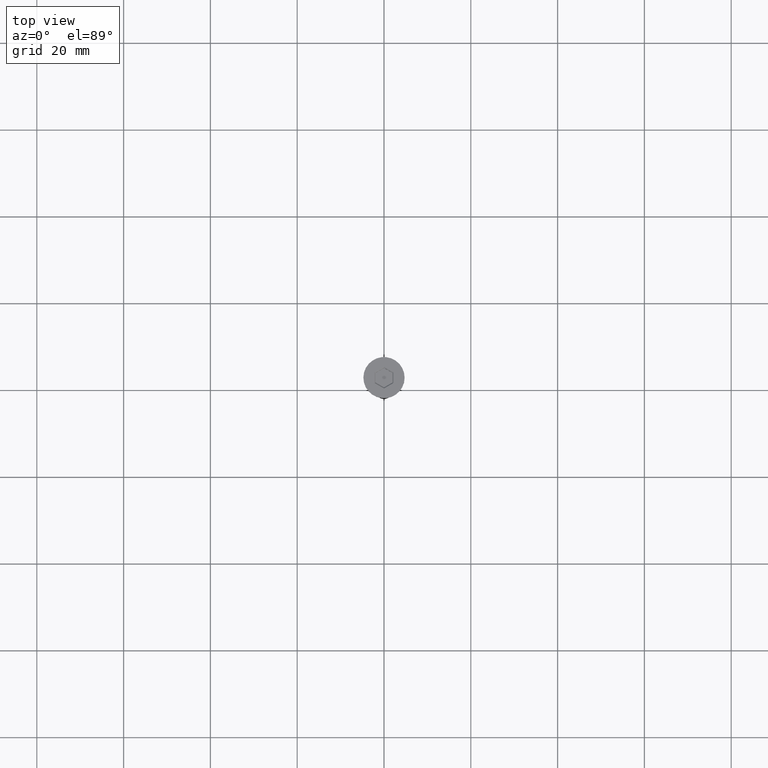
[diagram: clean part render]
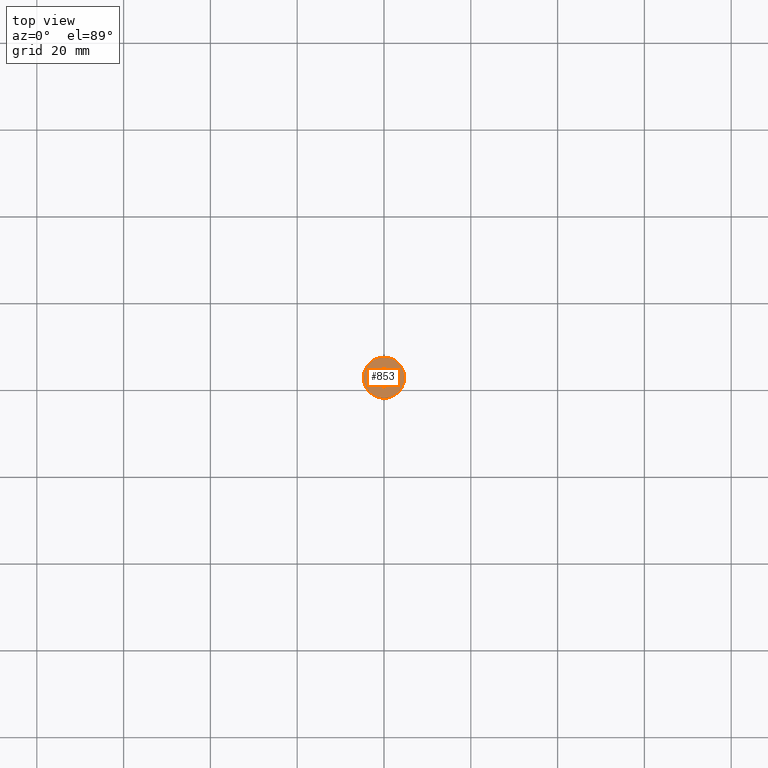
[diagram: same view with one face highlighted and labeled with its STEP entity id]
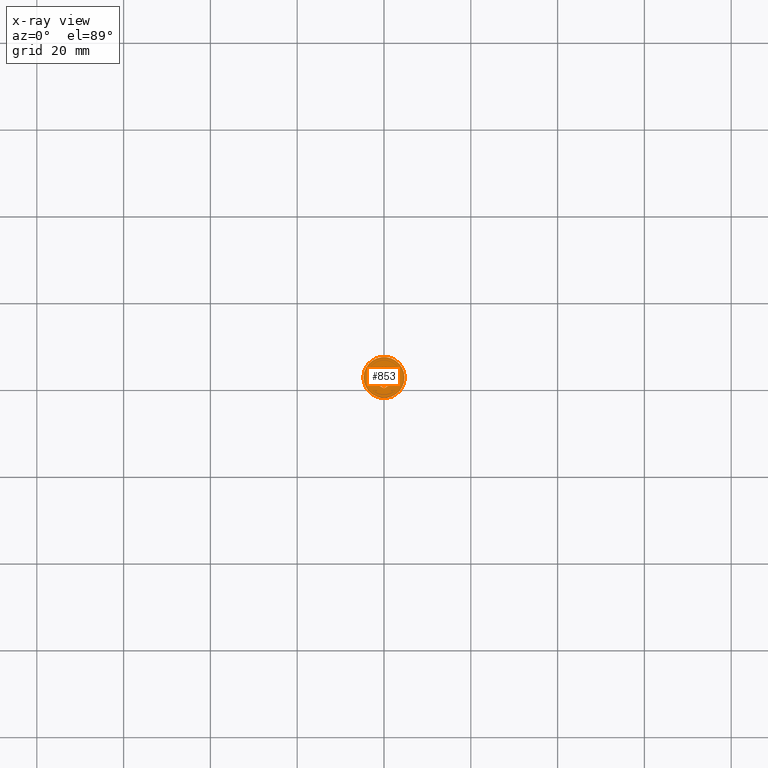
[diagram: x-ray of the same camera — body ghosted, the highlighted face saturated]
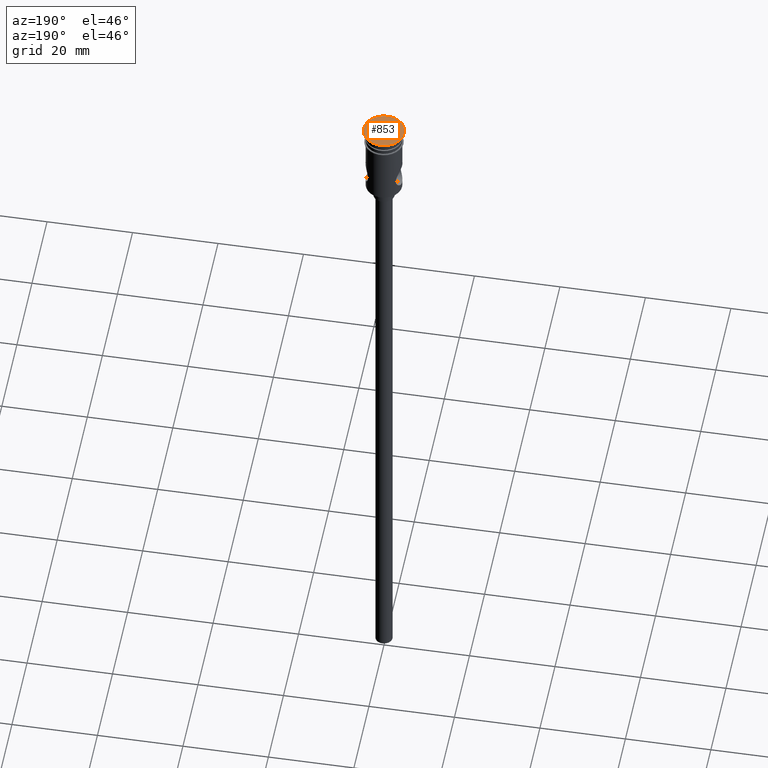
[diagram: same view with one face highlighted and labeled with its STEP entity id]
A machine part, top view. The second image highlights one B-rep face of the part: STEP entity #853.
The next image is the same camera in x-ray: the body ghosted, the highlighted face saturated — about 0% of this face is hidden behind the body in this view.
A second angle (auxiliary view) of the same face is appended — the face is thin or edge-on in the first view.
In plain terms, the highlighted planar face has unit normal (0, -0, 1).
Its self-contained STEP definition (entity closure, byte-faithful):
#9 = DIRECTION ( 'NONE',  ( 0.000000000000000000, -0.000000000000000000, 1.000000000000000000 ) ) ;
#34 = DIRECTION ( 'NONE',  ( 9.630221786776664787E-17, 1.000000000000000000, 0.000000000000000000 ) ) ;
#39 = CARTESIAN_POINT ( 'NONE',  ( -2.149999999999994138, 1.125833024919770109, 0.000000000000000000 ) ) ;
#87 = CARTESIAN_POINT ( 'NONE',  ( -0.09999999999999699407, 2.424871130596422564, 0.000000000000000000 ) ) ;
#131 = FACE_OUTER_BOUND ( 'NONE', #422, .T. ) ;
#145 = ORIENTED_EDGE ( 'NONE', *, *, #789, .T. ) ;
#179 = AXIS2_PLACEMENT_3D ( 'NONE', #717, #431, #1300 ) ;
#223 = CARTESIAN_POINT ( 'NONE',  ( 2.049999999999996714, 1.299038105676652455, 0.000000000000000000 ) ) ;
#230 = VECTOR ( 'NONE', #833, 1000.000000000000000 ) ;
#232 = CARTESIAN_POINT ( 'NONE',  ( -4.750000000000000000, 5.817072295949927426E-16, 0.000000000000000000 ) ) ;
#237 = VERTEX_POINT ( 'NONE', #811 ) ;
#244 = VERTEX_POINT ( 'NONE', #1153 ) ;
#256 = PLANE ( 'NONE',  #931 ) ;
#264 = CARTESIAN_POINT ( 'NONE',  ( 4.750000000000000000, 0.000000000000000000, 0.000000000000000000 ) ) ;
#266 = EDGE_LOOP ( 'NONE', ( #1249, #1262, #976, #1299, #145, #784 ) ) ;
#289 = CARTESIAN_POINT ( 'NONE',  ( 2.149999999999992806, -1.125833024919770331, 0.000000000000000000 ) ) ;
#345 = EDGE_CURVE ( 'NONE', #1398, #657, #1370, .T. ) ;
#371 = CARTESIAN_POINT ( 'NONE',  ( 0.09999999999999617528, -2.424871130596422564, 0.000000000000000000 ) ) ;
#382 = EDGE_CURVE ( 'NONE', #592, #577, #685, .T. ) ;
#401 = DIRECTION ( 'NONE',  ( 1.000000000000000000, 0.000000000000000000, 0.000000000000000000 ) ) ;
#413 = LINE ( 'NONE', #87, #1048 ) ;
#422 = EDGE_LOOP ( 'NONE', ( #594, #612 ) ) ;
#431 = DIRECTION ( 'NONE',  ( -0.000000000000000000, -0.000000000000000000, 1.000000000000000000 ) ) ;
#439 = EDGE_CURVE ( 'NONE', #244, #592, #523, .T. ) ;
#447 = EDGE_CURVE ( 'NONE', #577, #237, #413, .T. ) ;
#460 = FACE_BOUND ( 'NONE', #266, .T. ) ;
#513 = EDGE_CURVE ( 'NONE', #657, #1398, #880, .T. ) ;
#516 = CARTESIAN_POINT ( 'NONE',  ( 2.149999999999993250, 1.241303078757691969, 0.000000000000000000 ) ) ;
#523 = LINE ( 'NONE', #1173, #929 ) ;
#577 = VERTEX_POINT ( 'NONE', #822 ) ;
#592 = VERTEX_POINT ( 'NONE', #1393 ) ;
#594 = ORIENTED_EDGE ( 'NONE', *, *, #513, .T. ) ;
#603 = VECTOR ( 'NONE', #1135, 1000.000000000000000 ) ;
#610 = CARTESIAN_POINT ( 'NONE',  ( 0.000000000000000000, 0.000000000000000000, 0.000000000000000000 ) ) ;
#612 = ORIENTED_EDGE ( 'NONE', *, *, #345, .T. ) ;
#623 = DIRECTION ( 'NONE',  ( -0.000000000000000000, -0.000000000000000000, 1.000000000000000000 ) ) ;
#628 = DIRECTION ( 'NONE',  ( 0.8660254037844385966, 0.5000000000000002220, 0.000000000000000000 ) ) ;
#657 = VERTEX_POINT ( 'NONE', #264 ) ;
#664 = EDGE_CURVE ( 'NONE', #1037, #244, #1023, .T. ) ;
#685 = LINE ( 'NONE', #39, #1117 ) ;
#691 = AXIS2_PLACEMENT_3D ( 'NONE', #610, #623, #401 ) ;
#702 = CARTESIAN_POINT ( 'NONE',  ( 2.149999999999992806, -1.241303078757692413, 0.000000000000000000 ) ) ;
#717 = CARTESIAN_POINT ( 'NONE',  ( 0.000000000000000000, 0.000000000000000000, 0.000000000000000000 ) ) ;
#741 = DIRECTION ( 'NONE',  ( -0.8660254037844385966, 0.5000000000000001110, 0.000000000000000000 ) ) ;
#784 = ORIENTED_EDGE ( 'NONE', *, *, #664, .T. ) ;
#789 = EDGE_CURVE ( 'NONE', #948, #1037, #807, .T. ) ;
#807 = LINE ( 'NONE', #289, #230 ) ;
#811 = CARTESIAN_POINT ( 'NONE',  ( 3.449642192269546890E-16, 2.482606157515383494, 0.000000000000000000 ) ) ;
#822 = CARTESIAN_POINT ( 'NONE',  ( -2.149999999999994138, 1.241303078757690859, 0.000000000000000000 ) ) ;
#833 = DIRECTION ( 'NONE',  ( -1.926044357355332218E-16, -1.000000000000000000, 0.000000000000000000 ) ) ;
#853 = ADVANCED_FACE ( 'NONE', ( #460, #131 ), #256, .T. ) ;
#880 = CIRCLE ( 'NONE', #179, 4.750000000000000000 ) ;
#901 = CARTESIAN_POINT ( 'NONE',  ( 0.000000000000000000, 0.000000000000000000, 0.000000000000000000 ) ) ;
#912 = EDGE_CURVE ( 'NONE', #237, #948, #989, .T. ) ;
#929 = VECTOR ( 'NONE', #741, 1000.000000000000114 ) ;
#931 = AXIS2_PLACEMENT_3D ( 'NONE', #901, #9, #1345 ) ;
#948 = VERTEX_POINT ( 'NONE', #516 ) ;
#976 = ORIENTED_EDGE ( 'NONE', *, *, #447, .T. ) ;
#989 = LINE ( 'NONE', #223, #1163 ) ;
#1023 = LINE ( 'NONE', #371, #603 ) ;
#1037 = VERTEX_POINT ( 'NONE', #702 ) ;
#1048 = VECTOR ( 'NONE', #628, 999.9999999999998863 ) ;
#1106 = DIRECTION ( 'NONE',  ( 0.8660254037844385966, -0.5000000000000001110, 0.000000000000000000 ) ) ;
#1117 = VECTOR ( 'NONE', #34, 1000.000000000000000 ) ;
#1135 = DIRECTION ( 'NONE',  ( -0.8660254037844387076, -0.4999999999999998335, 0.000000000000000000 ) ) ;
#1153 = CARTESIAN_POINT ( 'NONE',  ( -6.517717499969021618E-16, -2.482606157515383050, 0.000000000000000000 ) ) ;
#1163 = VECTOR ( 'NONE', #1106, 1000.000000000000114 ) ;
#1173 = CARTESIAN_POINT ( 'NONE',  ( -2.049999999999997602, -1.299038105676652011, 0.000000000000000000 ) ) ;
#1249 = ORIENTED_EDGE ( 'NONE', *, *, #439, .T. ) ;
#1262 = ORIENTED_EDGE ( 'NONE', *, *, #382, .T. ) ;
#1299 = ORIENTED_EDGE ( 'NONE', *, *, #912, .T. ) ;
#1300 = DIRECTION ( 'NONE',  ( 1.000000000000000000, 0.000000000000000000, 0.000000000000000000 ) ) ;
#1345 = DIRECTION ( 'NONE',  ( 1.000000000000000000, 0.000000000000000000, 0.000000000000000000 ) ) ;
#1370 = CIRCLE ( 'NONE', #691, 4.750000000000000000 ) ;
#1393 = CARTESIAN_POINT ( 'NONE',  ( -2.149999999999994582, -1.241303078757691303, 0.000000000000000000 ) ) ;
#1398 = VERTEX_POINT ( 'NONE', #232 ) ;